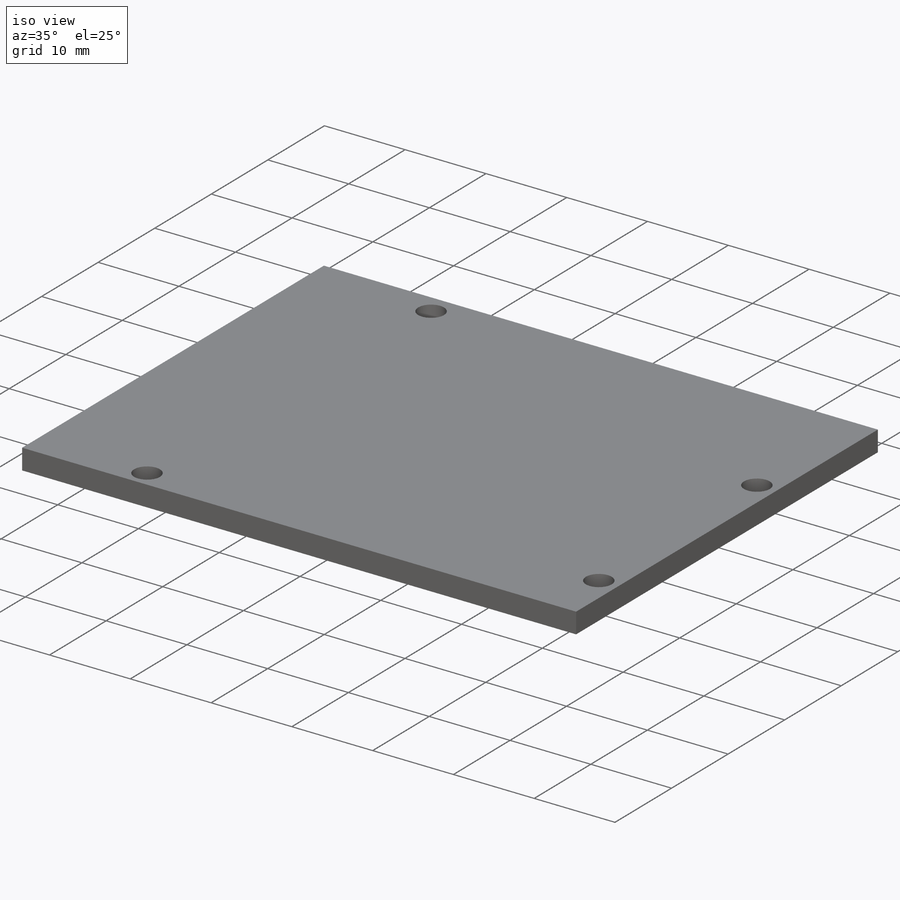
[diagram: iso view]
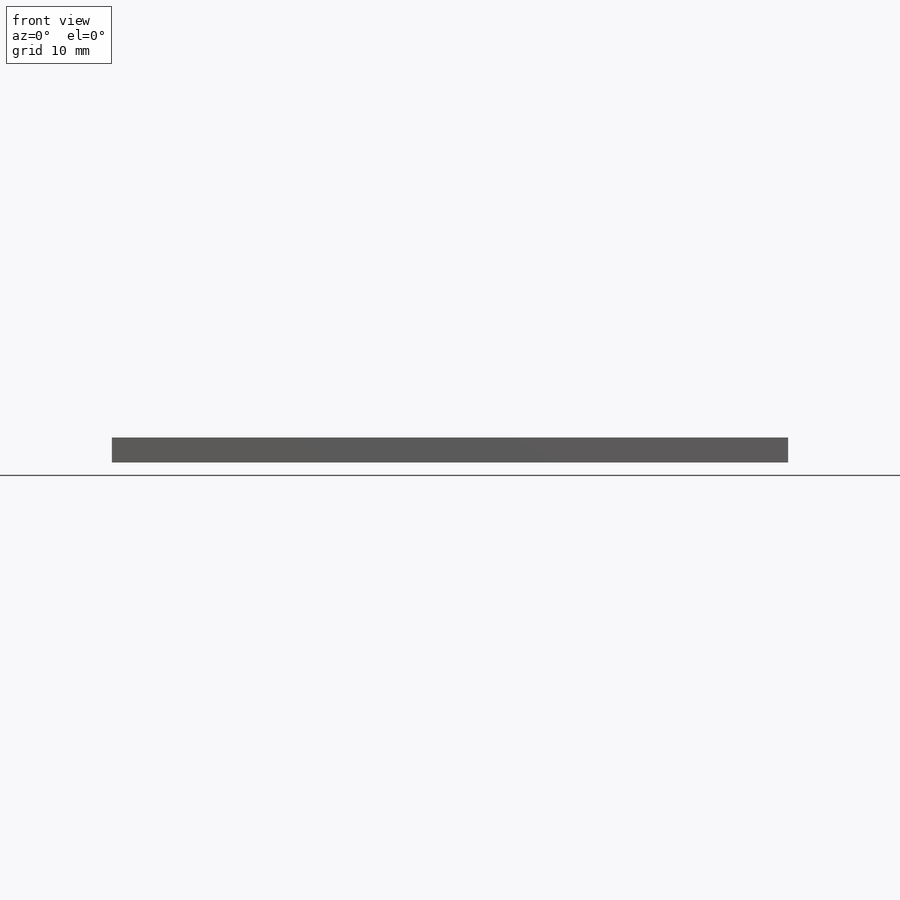
[diagram: front view]
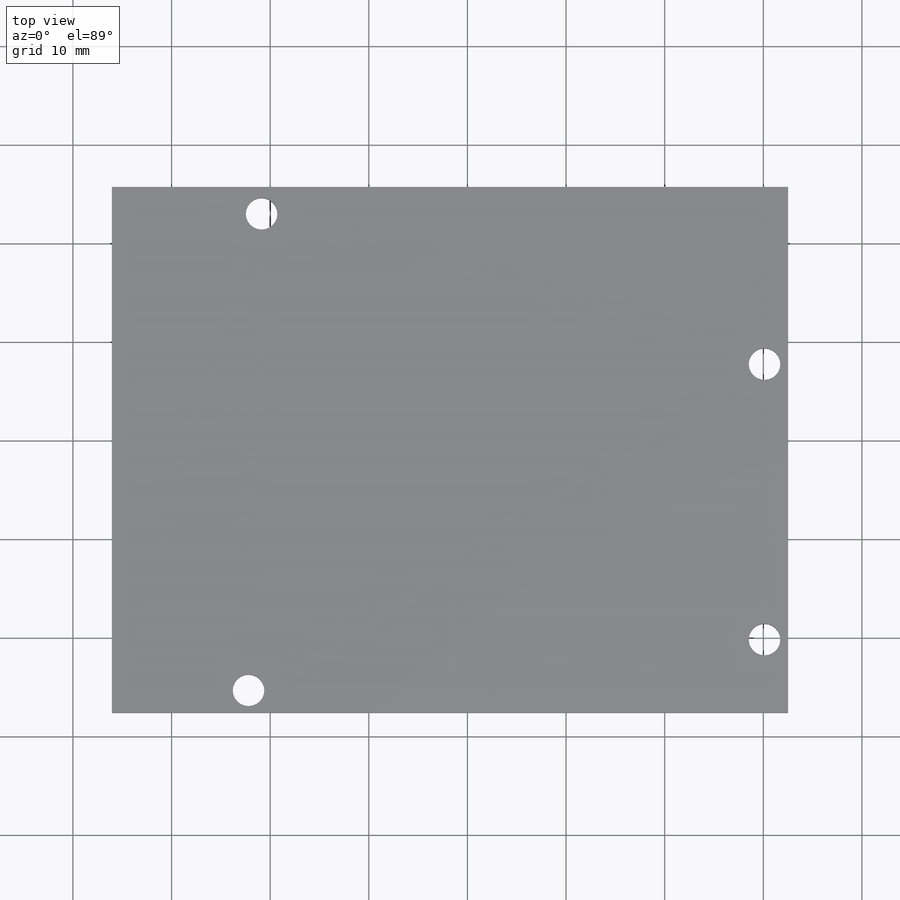
[diagram: top view]
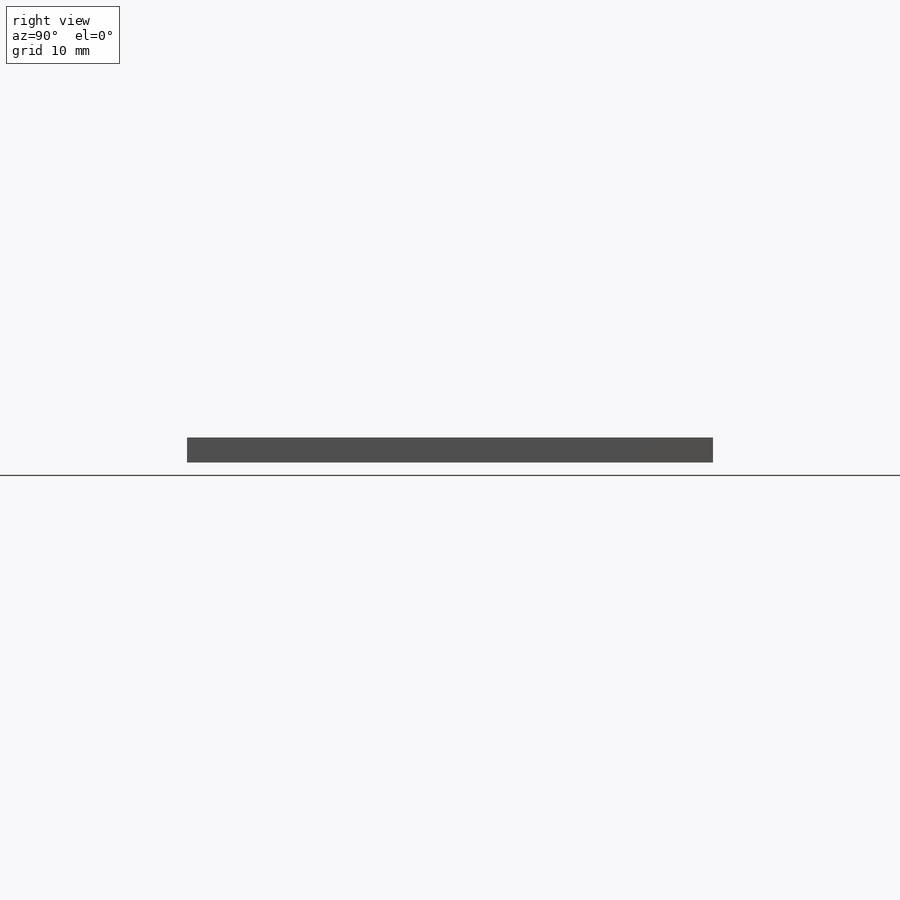
[diagram: right view]
SOLIDWORKS PART (.sldprt)
format: sldprt  version: not decoded by parser v0  size: 149,504 bytes
history: native  units: mm
features: sketch x3, material x1, extrude x1, hole x1 (+11 scaffold rows collapsed)
feature tree (17):
  scaffold x11  (default folders/planes/origin — collapsed)
  material  "Material <not specified>"
  sketch  "Sketch1"  dims[D1=53.34mm D2=68.58mm]
  extrude  "Boss-Extrude1"  Depth=2.54mm
  hole  "M3 Clearance Hole1"  Diameter=3.2mm Depth=5.08mm
  sketch  "Sketch3"  dims[D1=27.94mm D2=~7.088829mm D3=~7.088829mm D4=52.324mm D5=~5.147733mm D6=51.0mm D7=15.24mm D8=~48.327733mm]
  sketch  "Sketch2"  dims[hole-wizard template sketch: 47 standard entries collapsed; hole parameters kept: c15.Hole Depth=5.08mm c15.D3=~14.816244mm c15.Drill Angle=118.0deg]
decode coverage: 5 of 5 modeling features carry decoded parameters
note: ~ marks probable driven/reference dimensions
note: suppression state not decoded; provenance and decode notes live in map.json
